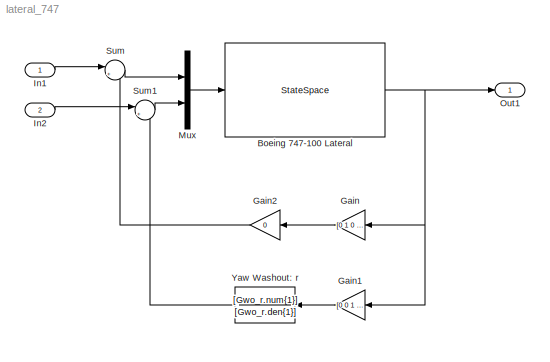
MODEL lateral_747
KIND model
BLOCK [StateSpace] Boeing 747-100 Lateral 
  A = syslatr.A
  B = syslatr.B
  C = syslatr.C
  D = syslatr.D
  SID = 3
BLOCK [Gain] Gain
  Gain = [0 1 0 0]
  Multiplication = Matrix(K*u)
  OutDataTypeStr = Inherit: Inherit via internal rule
  ParamDataTypeStr = Inherit: Inherit via internal rule
  SID = 6
  SaturateOnIntegerOverflow = off
BLOCK [Gain] Gain1
  Gain = [0 0 1 0]
  Multiplication = Matrix(K*u)
  OutDataTypeStr = Inherit: Inherit via internal rule
  ParamDataTypeStr = Inherit: Inherit via internal rule
  SID = 7
  SaturateOnIntegerOverflow = off
BLOCK [Gain] Gain2
  Gain = 0
  Multiplication = Matrix(K*u)
  OutDataTypeStr = Inherit: Inherit via internal rule
  ParamDataTypeStr = Inherit: Inherit via internal rule
  SID = 12
  SaturateOnIntegerOverflow = off
BLOCK [Inport] In1
  IconDisplay = Port number
  SID = 1
BLOCK [Inport] In2
  IconDisplay = Port number
  Port = 2
  SID = 9
BLOCK [Mux] Mux
  DisplayOption = bar
  Inputs = 2
  Ports = [2, 1]
  SID = 10
BLOCK [Outport] Out1
  IconDisplay = Port number
  SID = 2
BLOCK [Sum] Sum
  IconShape = round
  InputSameDT = off
  Inputs = |++
  OutDataTypeStr = Inherit: Inherit via internal rule
  Ports = [2, 1]
  SID = 5
  SaturateOnIntegerOverflow = off
BLOCK [Sum] Sum1
  IconShape = round
  InputSameDT = off
  Inputs = |++
  OutDataTypeStr = Inherit: Inherit via internal rule
  Ports = [2, 1]
  SID = 11
  SaturateOnIntegerOverflow = off
BLOCK [TransferFcn] Yaw Washout: r
  Denominator = [Gwo_r.den{1}]
  Numerator = [Gwo_r.num{1}]
  SID = 8
NET Boeing 747-100 Lateral :1 -> Gain1:1, Gain:1, Out1:1
LINE Gain1:1 -> Yaw Washout: r:1
LINE Gain2:1 -> Sum:2
LINE Gain:1 -> Gain2:1
LINE In1:1 -> Sum:1
LINE In2:1 -> Sum1:1
LINE Mux:1 -> Boeing 747-100 Lateral :1
LINE Sum1:1 -> Mux:2
LINE Sum:1 -> Mux:1
LINE Yaw Washout: r:1 -> Sum1:2
note: NET lines group one-source signal fan-out (src -> all destinations, sorted); 1:1 wires keep LINE
